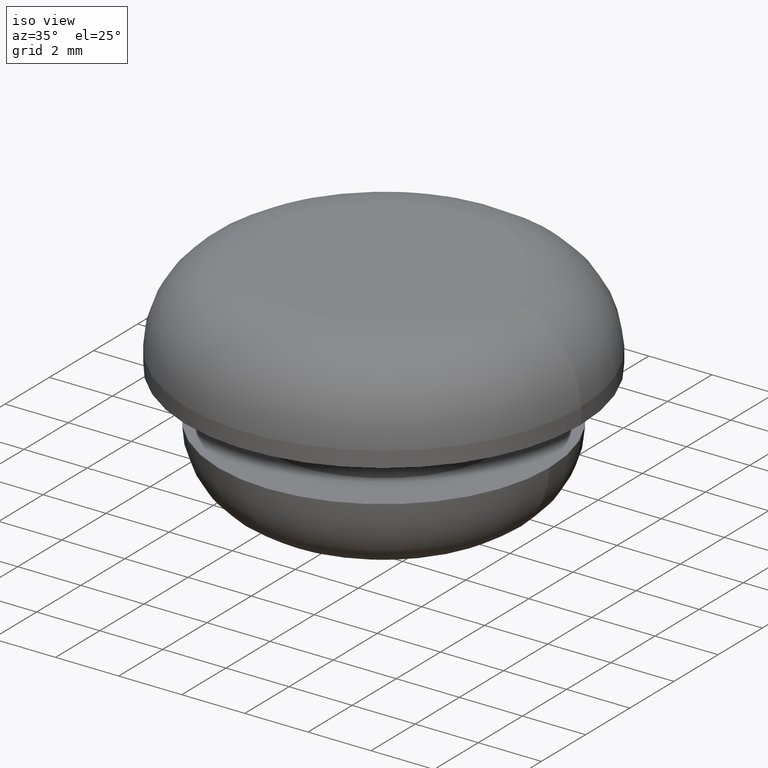
[diagram: clean part render]
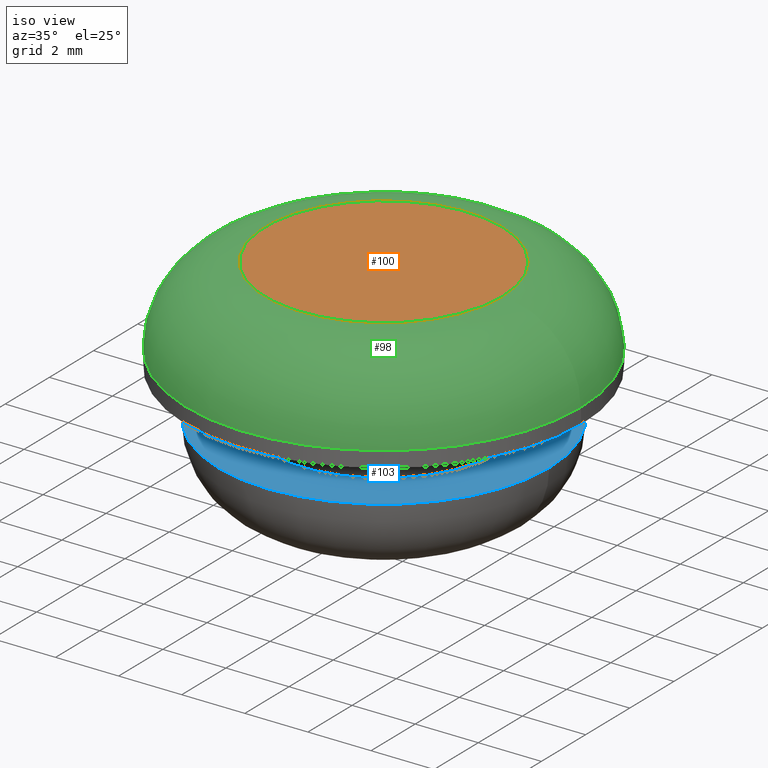
[diagram: same view with three faces highlighted in distinct colors, each labeled with its STEP entity id]
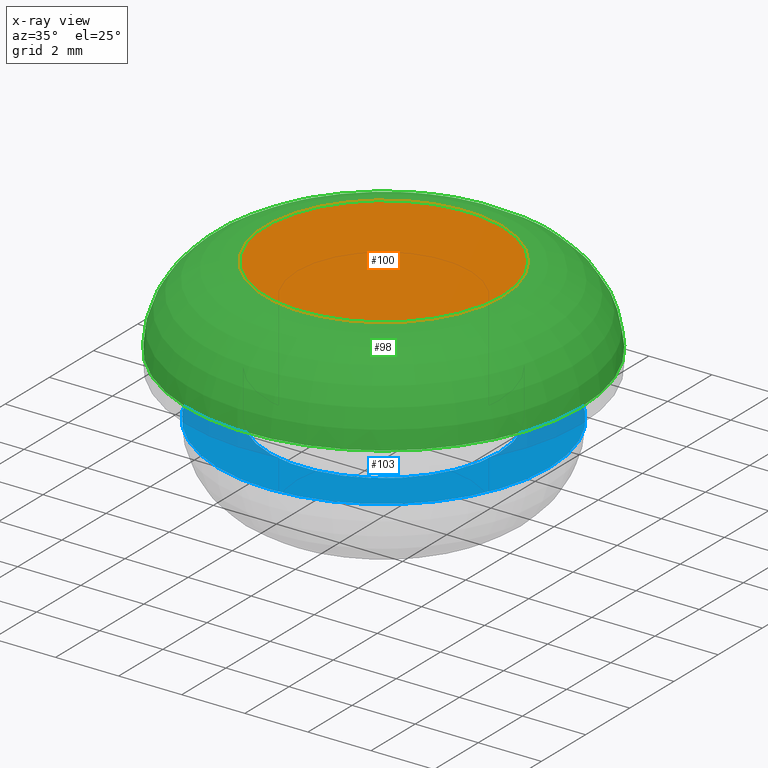
[diagram: x-ray of the same camera — body ghosted, the three highlighted faces saturated]
A machine part, iso view with three faces highlighted in distinct colors.
The next image is the same camera in x-ray (body ghosted, the three faces saturated) — at least one of them is partly hidden behind the body in this view.
Their STEP definitions:

[orange] entity #100 — the highlighted planar face has unit normal (0, 0, 1).
#31=FACE_OUTER_BOUND('',#43,.T.);
#43=EDGE_LOOP('',(#83));
#56=CIRCLE('',#114,3.75);
#64=VERTEX_POINT('',#172);
#72=EDGE_CURVE('',#64,#64,#56,.T.);
#83=ORIENTED_EDGE('',*,*,#72,.F.);
#93=PLANE('',#117);
#100=ADVANCED_FACE('',(#31),#93,.T.);
#114=AXIS2_PLACEMENT_3D('',#173,#140,#141);
#117=AXIS2_PLACEMENT_3D('',#177,#146,#147);
#140=DIRECTION('center_axis',(0.,0.,-1.));
#141=DIRECTION('ref_axis',(-1.,1.22464679914735E-16,0.));
#146=DIRECTION('center_axis',(0.,0.,1.));
#147=DIRECTION('ref_axis',(1.,0.,0.));
#172=CARTESIAN_POINT('',(3.75,-9.18485099360515E-16,3.));
#173=CARTESIAN_POINT('Origin',(0.,0.,3.));
#177=CARTESIAN_POINT('Origin',(2.25,0.,3.));

[blue] entity #103 — the highlighted planar face has unit normal (0, 0, 1).
#22=FACE_BOUND('',#49,.T.);
#34=FACE_OUTER_BOUND('',#48,.T.);
#48=EDGE_LOOP('',(#88));
#49=EDGE_LOOP('',(#89));
#54=CIRCLE('',#111,3.65);
#59=CIRCLE('',#120,5.25);
#62=VERTEX_POINT('',#167);
#67=VERTEX_POINT('',#181);
#70=EDGE_CURVE('',#62,#62,#54,.T.);
#75=EDGE_CURVE('',#67,#67,#59,.T.);
#88=ORIENTED_EDGE('',*,*,#75,.T.);
#89=ORIENTED_EDGE('',*,*,#70,.T.);
#95=PLANE('',#122);
#103=ADVANCED_FACE('',(#34,#22),#95,.T.);
#111=AXIS2_PLACEMENT_3D('',#168,#134,#135);
#120=AXIS2_PLACEMENT_3D('',#182,#152,#153);
#122=AXIS2_PLACEMENT_3D('',#184,#156,#157);
#134=DIRECTION('center_axis',(0.,0.,-1.));
#135=DIRECTION('ref_axis',(-1.,0.,0.));
#152=DIRECTION('center_axis',(0.,0.,1.));
#153=DIRECTION('ref_axis',(1.,0.,0.));
#156=DIRECTION('center_axis',(0.,0.,1.));
#157=DIRECTION('ref_axis',(1.,0.,0.));
#167=CARTESIAN_POINT('',(-3.65,0.,-1.5));
#168=CARTESIAN_POINT('Origin',(0.,0.,-1.5));
#181=CARTESIAN_POINT('',(5.25,0.,-1.5));
#182=CARTESIAN_POINT('Origin',(0.,0.,-1.5));
#184=CARTESIAN_POINT('Origin',(4.,0.,-1.5));

[green] entity #98 — the highlighted toroidal blend (fillet) surface has major radius 3.75 mm and minor (blend) radius 2.5 mm.
#15=TOROIDAL_SURFACE('',#112,3.75,2.5);
#18=FACE_BOUND('',#40,.T.);
#29=FACE_OUTER_BOUND('',#39,.T.);
#39=EDGE_LOOP('',(#79));
#40=EDGE_LOOP('',(#80));
#55=CIRCLE('',#113,6.25);
#56=CIRCLE('',#114,3.75);
#63=VERTEX_POINT('',#170);
#64=VERTEX_POINT('',#172);
#71=EDGE_CURVE('',#63,#63,#55,.T.);
#72=EDGE_CURVE('',#64,#64,#56,.T.);
#79=ORIENTED_EDGE('',*,*,#71,.T.);
#80=ORIENTED_EDGE('',*,*,#72,.T.);
#98=ADVANCED_FACE('',(#29,#18),#15,.T.);
#112=AXIS2_PLACEMENT_3D('',#169,#136,#137);
#113=AXIS2_PLACEMENT_3D('',#171,#138,#139);
#114=AXIS2_PLACEMENT_3D('',#173,#140,#141);
#136=DIRECTION('center_axis',(0.,0.,1.));
#137=DIRECTION('ref_axis',(1.,0.,0.));
#138=DIRECTION('center_axis',(0.,0.,1.));
#139=DIRECTION('ref_axis',(-1.,1.22464679914735E-16,0.));
#140=DIRECTION('center_axis',(0.,0.,-1.));
#141=DIRECTION('ref_axis',(-1.,1.22464679914735E-16,0.));
#169=CARTESIAN_POINT('Origin',(0.,0.,0.499999999999999));
#170=CARTESIAN_POINT('',(6.25,0.,0.499999999999999));
#171=CARTESIAN_POINT('Origin',(0.,0.,0.499999999999999));
#172=CARTESIAN_POINT('',(3.75,-9.18485099360515E-16,3.));
#173=CARTESIAN_POINT('Origin',(0.,0.,3.));